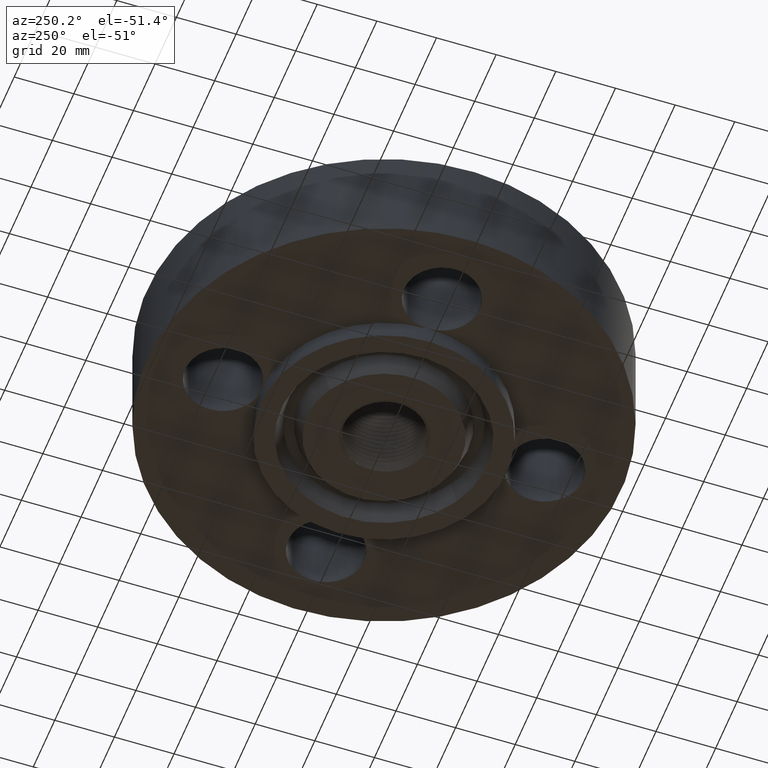
[diagram: clean part render]
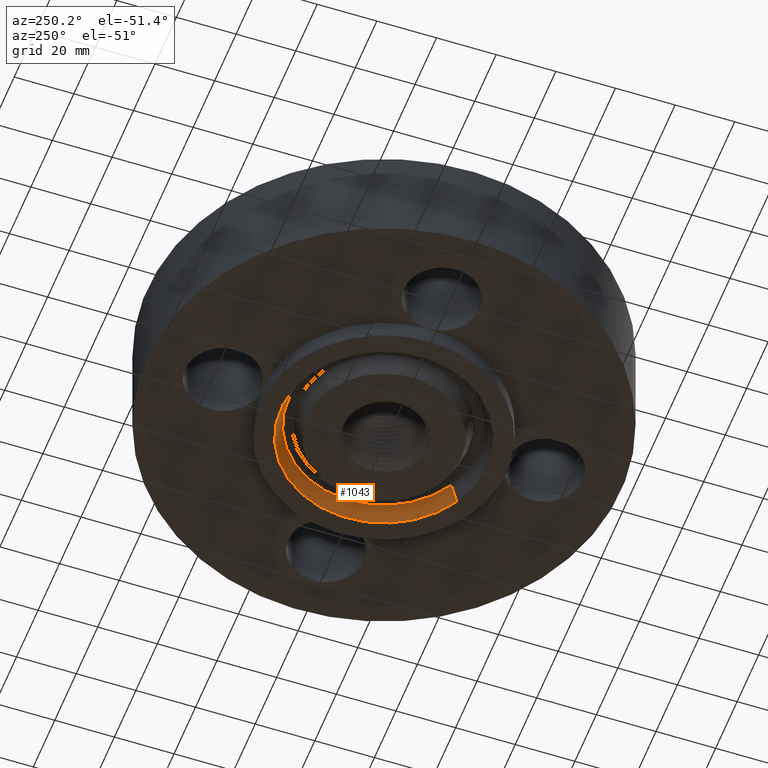
[diagram: same view with one face highlighted and labeled with its STEP entity id]
A machine part, auxiliary view. The second image highlights one B-rep face of the part: STEP entity #1043.
In plain terms, the highlighted conical surface has half-angle 23 deg.
Its self-contained STEP definition (entity closure, byte-faithful):
#370=AXIS2_PLACEMENT_3D('Circle Axis2P3D',#368,#369,$) ;
#978=AXIS2_PLACEMENT_3D('Cone Axis2P3D',#975,#976,#977) ;
#999=AXIS2_PLACEMENT_3D('Circle Axis2P3D',#997,#998,$) ;
#363=CARTESIAN_POINT('Vertex',(0.651779019735,-1.19307349289,-0.250000000001)) ;
#365=CARTESIAN_POINT('Vertex',(-0.651779019735,1.19307349289,-0.250000000001)) ;
#368=CARTESIAN_POINT('Axis2P3D Location',(-6.99353086378E-017,-2.79741234551E-016,-0.250000000001)) ;
#944=CARTESIAN_POINT('Vertex',(-0.604746652387,1.10698132194,-0.0188873350169)) ;
#946=CARTESIAN_POINT('Vertex',(0.604746652387,-1.10698132194,-0.0188873350169)) ;
#975=CARTESIAN_POINT('Axis2P3D Location',(0.,0.,-0.0188873350169)) ;
#980=CARTESIAN_POINT('Line Origine',(-0.628262836061,1.15002740742,-0.134443667509)) ;
#985=CARTESIAN_POINT('Line Origine',(0.628262836061,-1.15002740742,-0.134443667509)) ;
#997=CARTESIAN_POINT('Axis2P3D Location',(0.,0.,-0.0188873350169)) ;
#369=DIRECTION('Axis2P3D Direction',(0.,0.,-0.0393700787402)) ;
#976=DIRECTION('Axis2P3D Direction',(-0.,-0.,-0.0393700787402)) ;
#977=DIRECTION('Axis2P3D XDirection',(-0.0188750212049,0.0345504945626,0.)) ;
#981=DIRECTION('Vector Direction',(-0.00737505833565,0.0134999537303,-0.0362403485611)) ;
#986=DIRECTION('Vector Direction',(0.00737505833565,-0.0134999537303,-0.0362403485611)) ;
#998=DIRECTION('Axis2P3D Direction',(0.,0.,0.0393700787402)) ;
#982=VECTOR('Line Direction',#981,0.0393700787402) ;
#987=VECTOR('Line Direction',#986,0.0393700787402) ;
#1038=ORIENTED_EDGE('',*,*,#372,.T.) ;
#1039=ORIENTED_EDGE('',*,*,#989,.T.) ;
#1040=ORIENTED_EDGE('',*,*,#1001,.T.) ;
#1041=ORIENTED_EDGE('',*,*,#984,.F.) ;
#1043=ADVANCED_FACE('PartBody',(#1042),#979,.F.) ;
#371=CIRCLE('generated circle',#370,1.35950000001) ;
#1000=CIRCLE('generated circle',#999,1.26139849401) ;
#979=CONICAL_SURFACE('Cone',#978,1.26139849401,0.401425727959) ;
#372=EDGE_CURVE('',#366,#364,#371,.T.) ;
#984=EDGE_CURVE('',#366,#945,#983,.F.) ;
#989=EDGE_CURVE('',#364,#947,#988,.F.) ;
#1001=EDGE_CURVE('',#947,#945,#1000,.T.) ;
#1037=EDGE_LOOP('',(#1038,#1039,#1040,#1041)) ;
#1042=FACE_OUTER_BOUND('',#1037,.T.) ;
#983=LINE('Line',#980,#982) ;
#988=LINE('Line',#985,#987) ;
#364=VERTEX_POINT('',#363) ;
#366=VERTEX_POINT('',#365) ;
#945=VERTEX_POINT('',#944) ;
#947=VERTEX_POINT('',#946) ;